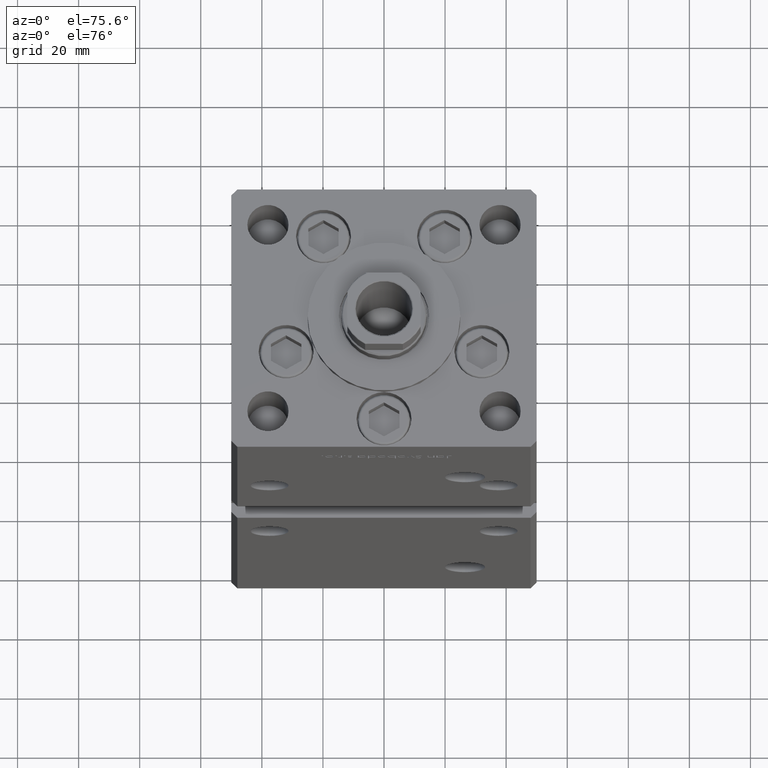
[diagram: clean part render]
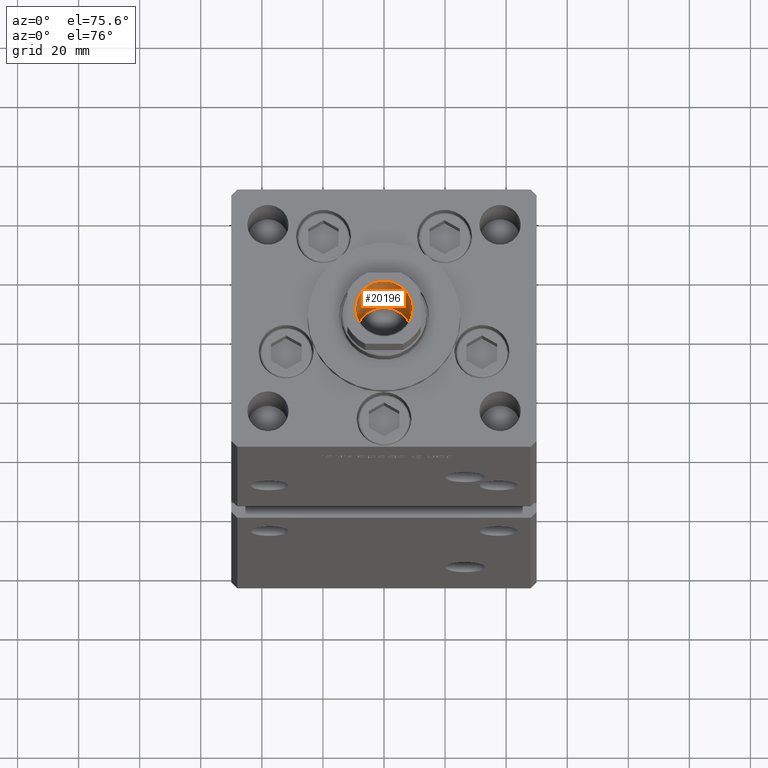
[diagram: same view with one face highlighted and labeled with its STEP entity id]
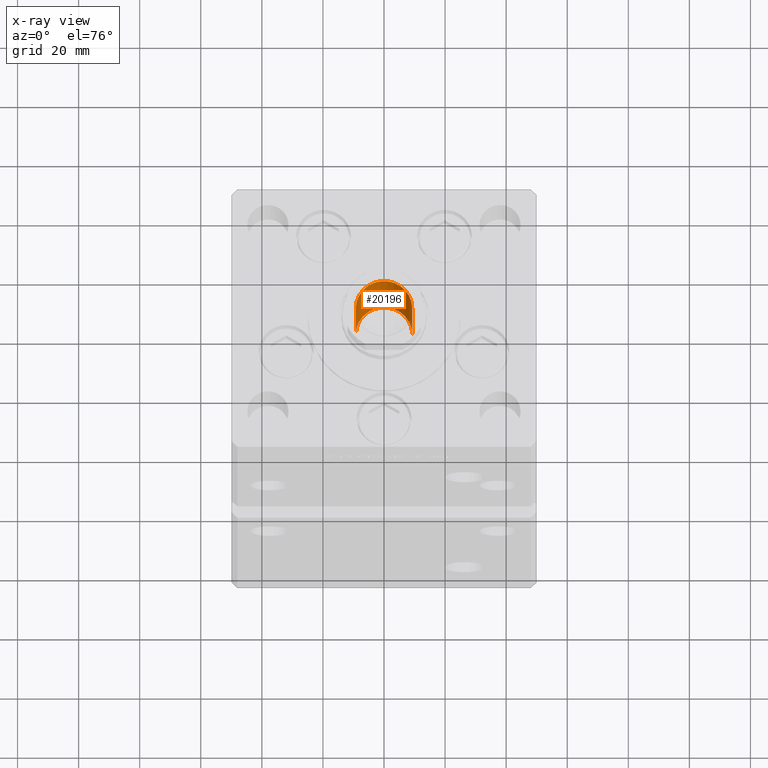
[diagram: x-ray of the same camera — body ghosted, the highlighted face saturated]
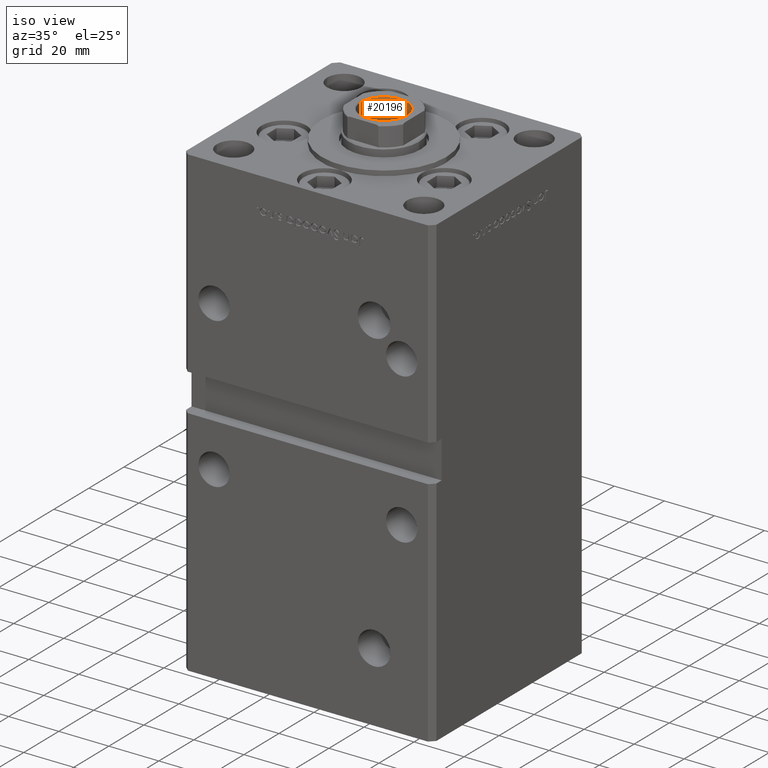
[diagram: same view with one face highlighted and labeled with its STEP entity id]
A machine part, auxiliary view. The second image highlights one B-rep face of the part: STEP entity #20196.
The next image is the same camera in x-ray: the body ghosted, the highlighted face saturated — about 2% of this face is hidden behind the body in this view.
A second angle (iso view) of the same face is appended — the face is thin or edge-on in the first view.
In plain terms, the highlighted cylindrical surface (edge-blend (fillet) strip) has radius 9.25 mm, axis along (0, 0, 1).
Its self-contained STEP definition (entity closure, byte-faithful):
#733 = CARTESIAN_POINT ( 'NONE',  ( 0.000000000000000000, 0.000000000000000000, 165.2500000000000000 ) ) ;
#2979 = CARTESIAN_POINT ( 'NONE',  ( 9.249999999999996447, 0.000000000000000000, 165.2500000000000000 ) ) ;
#4712 = LINE ( 'NONE', #21116, #20866 ) ;
#7796 = CIRCLE ( 'NONE', #37887, 9.249999999999994671 ) ;
#8644 = ORIENTED_EDGE ( 'NONE', *, *, #42654, .T. ) ;
#8808 = DIRECTION ( 'NONE',  ( -0.000000000000000000, -0.000000000000000000, 1.000000000000000000 ) ) ;
#9280 = DIRECTION ( 'NONE',  ( -0.000000000000000000, -0.000000000000000000, 1.000000000000000000 ) ) ;
#9607 = FACE_OUTER_BOUND ( 'NONE', #26156, .T. ) ;
#9656 = VERTEX_POINT ( 'NONE', #16825 ) ;
#11057 = LINE ( 'NONE', #2979, #44037 ) ;
#13672 = DIRECTION ( 'NONE',  ( 1.000000000000000000, 0.000000000000000000, 0.000000000000000000 ) ) ;
#16825 = CARTESIAN_POINT ( 'NONE',  ( -9.249999999999996447, 1.132798289211301304E-15, 164.9499999999999886 ) ) ;
#17743 = DIRECTION ( 'NONE',  ( -0.000000000000000000, -0.000000000000000000, 1.000000000000000000 ) ) ;
#18534 = DIRECTION ( 'NONE',  ( 1.000000000000000000, 0.000000000000000000, 0.000000000000000000 ) ) ;
#18934 = AXIS2_PLACEMENT_3D ( 'NONE', #43209, #21998, #13672 ) ;
#20156 = CARTESIAN_POINT ( 'NONE',  ( 9.249999999999996447, 0.000000000000000000, 164.9499999999999886 ) ) ;
#20196 = ADVANCED_FACE ( 'NONE', ( #9607 ), #45899, .F. ) ;
#20866 = VECTOR ( 'NONE', #9280, 1000.000000000000000 ) ;
#21116 = CARTESIAN_POINT ( 'NONE',  ( -9.249999999999996447, 1.132798289211301304E-15, 165.2500000000000000 ) ) ;
#21985 = VERTEX_POINT ( 'NONE', #20156 ) ;
#21998 = DIRECTION ( 'NONE',  ( 0.000000000000000000, 0.000000000000000000, 1.000000000000000000 ) ) ;
#23218 = EDGE_CURVE ( 'NONE', #36076, #28902, #7796, .T. ) ;
#23431 = DIRECTION ( 'NONE',  ( -0.000000000000000000, -0.000000000000000000, 1.000000000000000000 ) ) ;
#24727 = ORIENTED_EDGE ( 'NONE', *, *, #23218, .F. ) ;
#26156 = EDGE_LOOP ( 'NONE', ( #50807, #24727, #43523, #8644 ) ) ;
#26859 = CARTESIAN_POINT ( 'NONE',  ( 0.000000000000000000, 0.000000000000000000, 130.2500000000000000 ) ) ;
#28317 = CARTESIAN_POINT ( 'NONE',  ( -9.249999999999994671, 1.132798289211300909E-15, 130.2500000000000000 ) ) ;
#28688 = EDGE_CURVE ( 'NONE', #28902, #9656, #4712, .T. ) ;
#28902 = VERTEX_POINT ( 'NONE', #28317 ) ;
#29271 = EDGE_CURVE ( 'NONE', #36076, #21985, #11057, .T. ) ;
#33631 = AXIS2_PLACEMENT_3D ( 'NONE', #733, #8808, #41869 ) ;
#36076 = VERTEX_POINT ( 'NONE', #52661 ) ;
#37887 = AXIS2_PLACEMENT_3D ( 'NONE', #26859, #17743, #18534 ) ;
#41869 = DIRECTION ( 'NONE',  ( 1.000000000000000000, 0.000000000000000000, 0.000000000000000000 ) ) ;
#42654 = EDGE_CURVE ( 'NONE', #21985, #9656, #45565, .T. ) ;
#43209 = CARTESIAN_POINT ( 'NONE',  ( 0.000000000000000000, 0.000000000000000000, 164.9499999999999886 ) ) ;
#43523 = ORIENTED_EDGE ( 'NONE', *, *, #29271, .T. ) ;
#44037 = VECTOR ( 'NONE', #23431, 1000.000000000000000 ) ;
#45565 = CIRCLE ( 'NONE', #18934, 9.249999999999996447 ) ;
#45899 = CYLINDRICAL_SURFACE ( 'NONE', #33631, 9.249999999999996447 ) ;
#50807 = ORIENTED_EDGE ( 'NONE', *, *, #28688, .F. ) ;
#52661 = CARTESIAN_POINT ( 'NONE',  ( 9.249999999999994671, 0.000000000000000000, 130.2500000000000000 ) ) ;